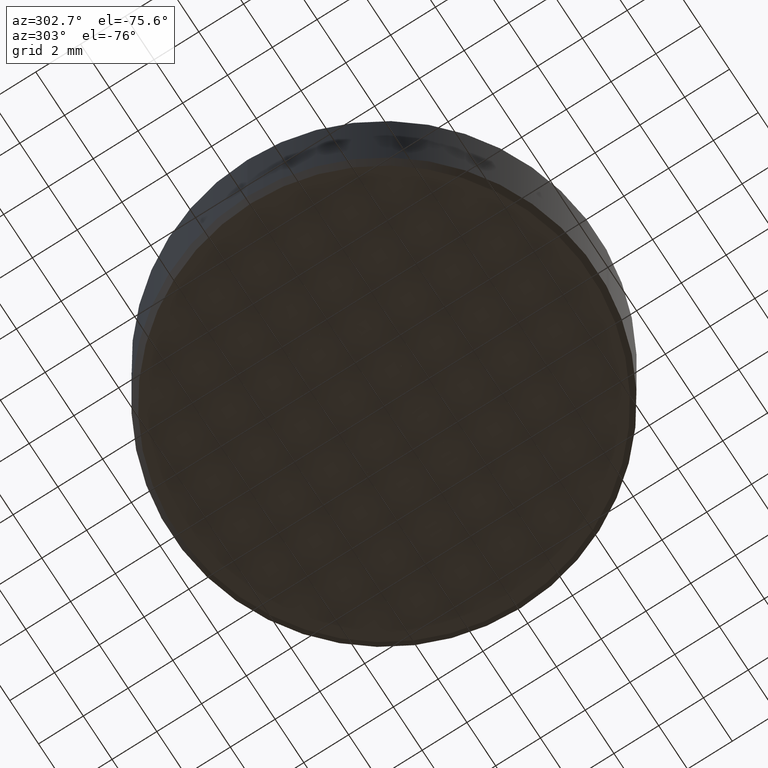
[diagram: clean part render]
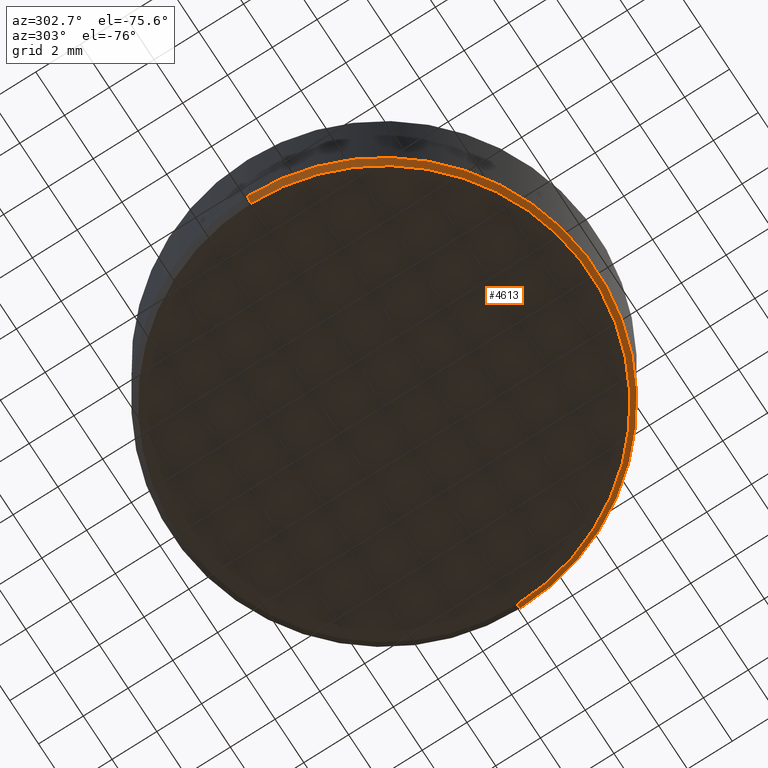
[diagram: same view with one face highlighted and labeled with its STEP entity id]
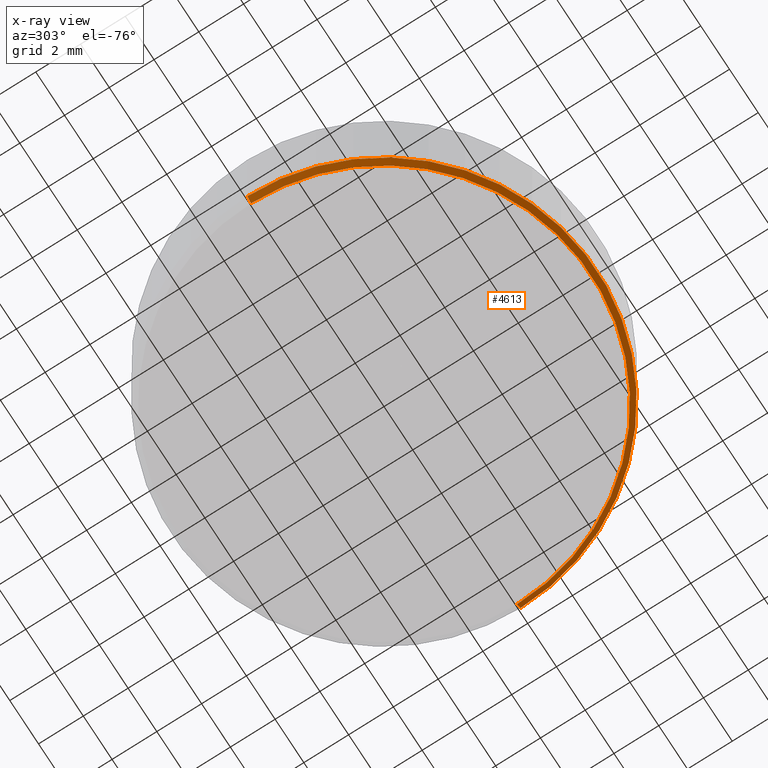
[diagram: x-ray of the same camera — body ghosted, the highlighted face saturated]
A machine part, auxiliary view. The second image highlights one B-rep face of the part: STEP entity #4613.
The next image is the same camera in x-ray: the body ghosted, the highlighted face saturated — about 0% of this face is hidden behind the body in this view.
In plain terms, the highlighted conical surface has half-angle 45 deg.
Its self-contained STEP definition (entity closure, byte-faithful):
#27 = CARTESIAN_POINT ( 'NONE',  ( 0.3740157480314960600, 0.0000000000000000000, -0.1082677165354330700 ) ) ;
#373 = CARTESIAN_POINT ( 'NONE',  ( -0.3641732283464567100, 4.520103835435604900E-017, -0.1181102362204724500 ) ) ;
#484 = CARTESIAN_POINT ( 'NONE',  ( 0.3740157480314960600, 4.580371886574746100E-017, -0.1082677165354330700 ) ) ;
#703 = VERTEX_POINT ( 'NONE', #1603 ) ;
#934 = AXIS2_PLACEMENT_3D ( 'NONE', #9502, #4727, #3927 ) ;
#1069 = AXIS2_PLACEMENT_3D ( 'NONE', #4556, #10132, #5348 ) ;
#1117 = ORIENTED_EDGE ( 'NONE', *, *, #9712, .T. ) ;
#1229 = CONICAL_SURFACE ( 'NONE', #934, 0.3740157480314960600, 0.7853981633974482800 ) ;
#1483 = FACE_OUTER_BOUND ( 'NONE', #4395, .T. ) ;
#1603 = CARTESIAN_POINT ( 'NONE',  ( 0.3641732283464567100, 0.0000000000000000000, -0.1181102362204724500 ) ) ;
#1652 = VERTEX_POINT ( 'NONE', #484 ) ;
#1873 = CIRCLE ( 'NONE', #9982, 0.3740157480314960600 ) ;
#2176 = CARTESIAN_POINT ( 'NONE',  ( 0.0000000000000000000, 0.0000000000000000000, -0.1082677165354330700 ) ) ;
#2963 = DIRECTION ( 'NONE',  ( 1.000000000000000000, 0.0000000000000000000, 0.0000000000000000000 ) ) ;
#3927 = DIRECTION ( 'NONE',  ( 1.000000000000000000, 0.0000000000000000000, 0.0000000000000000000 ) ) ;
#4105 = ORIENTED_EDGE ( 'NONE', *, *, #9497, .F. ) ;
#4395 = EDGE_LOOP ( 'NONE', ( #10311, #8357, #1117, #4105 ) ) ;
#4556 = CARTESIAN_POINT ( 'NONE',  ( 0.0000000000000000000, 0.0000000000000000000, -0.1181102362204724500 ) ) ;
#4613 = ADVANCED_FACE ( 'NONE', ( #1483 ), #1229, .T. ) ;
#4727 = DIRECTION ( 'NONE',  ( -0.0000000000000000000, -0.0000000000000000000, 1.000000000000000000 ) ) ;
#4844 = VECTOR ( 'NONE', #7973, 39.37007874015748900 ) ;
#5329 = VERTEX_POINT ( 'NONE', #373 ) ;
#5348 = DIRECTION ( 'NONE',  ( 1.000000000000000000, 0.0000000000000000000, 0.0000000000000000000 ) ) ;
#5371 = CARTESIAN_POINT ( 'NONE',  ( -0.3740157480314960600, 4.580371886574746100E-017, -0.1082677165354330700 ) ) ;
#5831 = EDGE_CURVE ( 'NONE', #703, #5329, #6604, .T. ) ;
#6376 = VECTOR ( 'NONE', #10072, 39.37007874015748900 ) ;
#6604 = CIRCLE ( 'NONE', #1069, 0.3641732283464567100 ) ;
#6615 = LINE ( 'NONE', #5371, #6376 ) ;
#6978 = LINE ( 'NONE', #27, #4844 ) ;
#7086 = CARTESIAN_POINT ( 'NONE',  ( -0.3740157480314960600, 0.0000000000000000000, -0.1082677165354330700 ) ) ;
#7744 = DIRECTION ( 'NONE',  ( -0.0000000000000000000, -0.0000000000000000000, 1.000000000000000000 ) ) ;
#7973 = DIRECTION ( 'NONE',  ( 0.7071067811865474600, 0.0000000000000000000, 0.7071067811865474600 ) ) ;
#8164 = EDGE_CURVE ( 'NONE', #5329, #10040, #6615, .T. ) ;
#8357 = ORIENTED_EDGE ( 'NONE', *, *, #5831, .F. ) ;
#9497 = EDGE_CURVE ( 'NONE', #10040, #1652, #1873, .T. ) ;
#9502 = CARTESIAN_POINT ( 'NONE',  ( 0.0000000000000000000, 0.0000000000000000000, -0.1082677165354330700 ) ) ;
#9712 = EDGE_CURVE ( 'NONE', #703, #1652, #6978, .T. ) ;
#9982 = AXIS2_PLACEMENT_3D ( 'NONE', #2176, #7744, #2963 ) ;
#10040 = VERTEX_POINT ( 'NONE', #7086 ) ;
#10072 = DIRECTION ( 'NONE',  ( -0.7071067811865474600, 8.659560562354932900E-017, 0.7071067811865474600 ) ) ;
#10132 = DIRECTION ( 'NONE',  ( -0.0000000000000000000, -0.0000000000000000000, -1.000000000000000000 ) ) ;
#10311 = ORIENTED_EDGE ( 'NONE', *, *, #8164, .F. ) ;